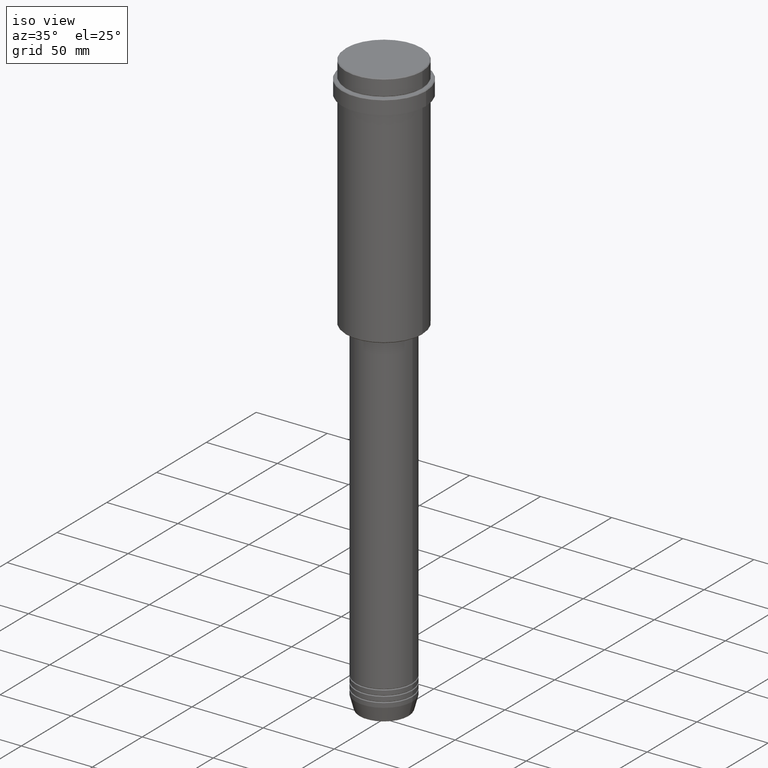
[diagram: clean part render]
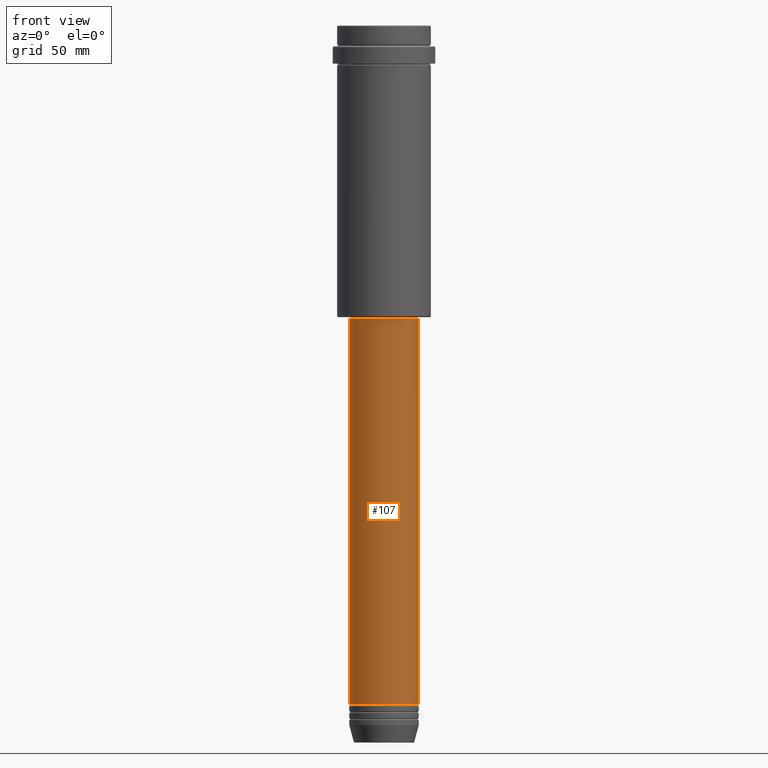
[diagram: tour spotlight — one face highlighted and labeled with its STEP entity id]
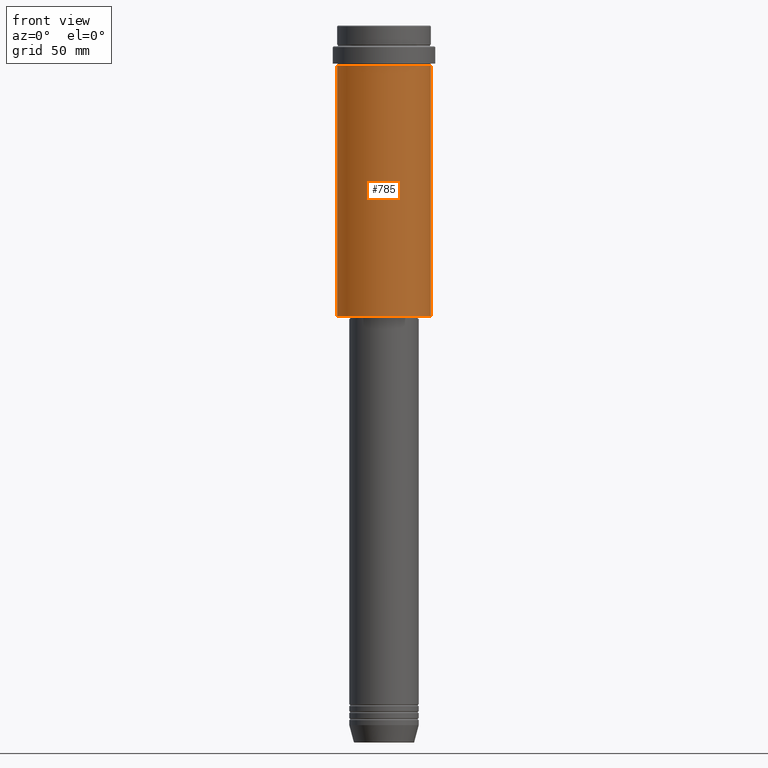
[diagram: tour spotlight — one face highlighted and labeled with its STEP entity id]
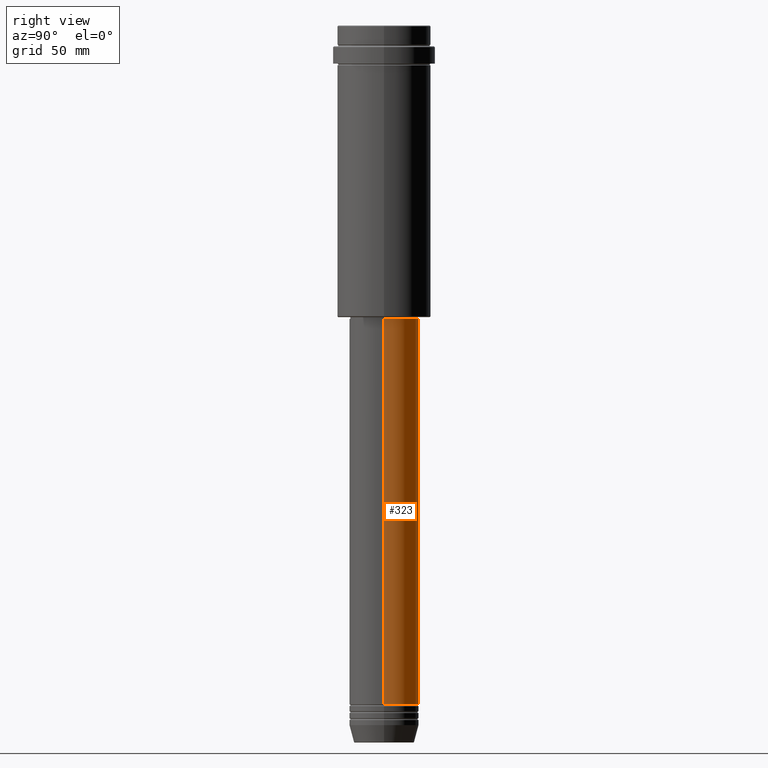
[diagram: tour spotlight — one face highlighted and labeled with its STEP entity id]
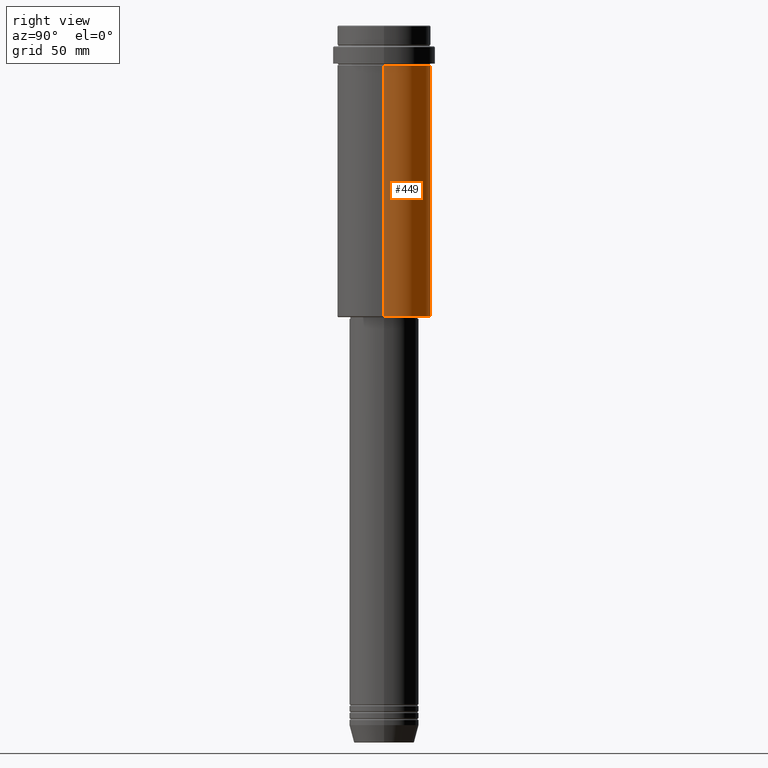
[diagram: tour spotlight — one face highlighted and labeled with its STEP entity id]
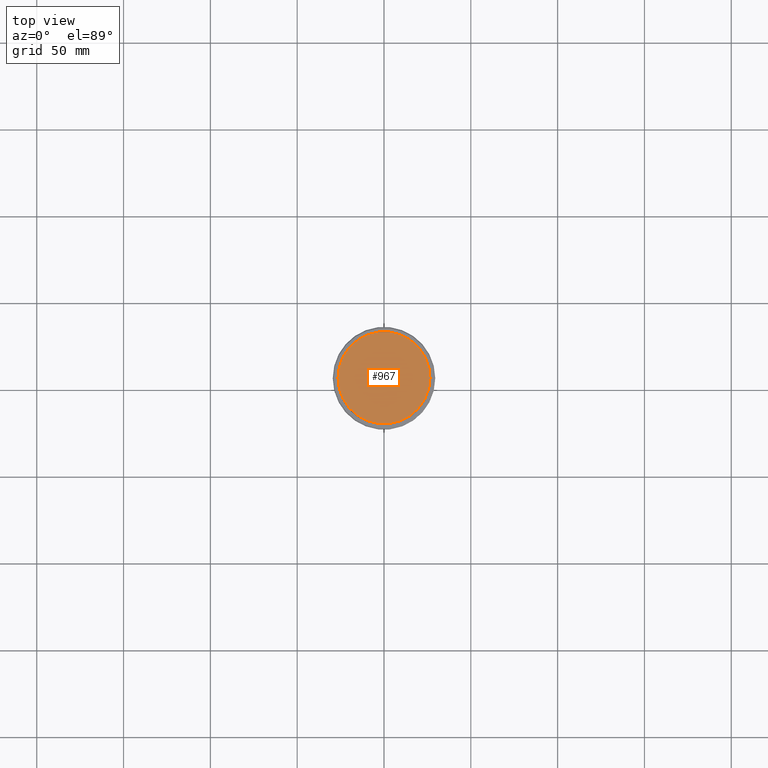
[diagram: tour spotlight — one face highlighted and labeled with its STEP entity id]
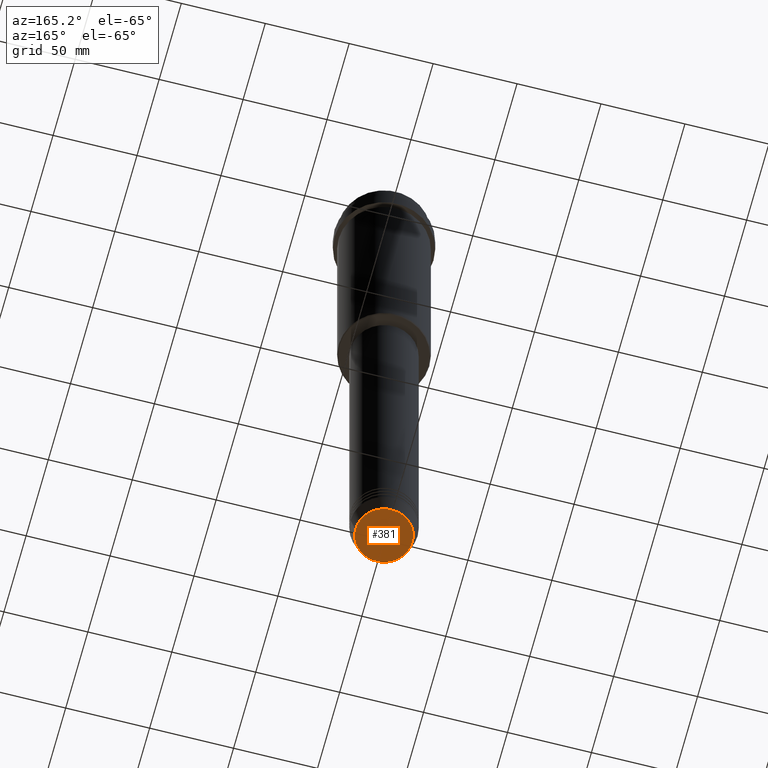
[diagram: tour spotlight — one face highlighted and labeled with its STEP entity id]
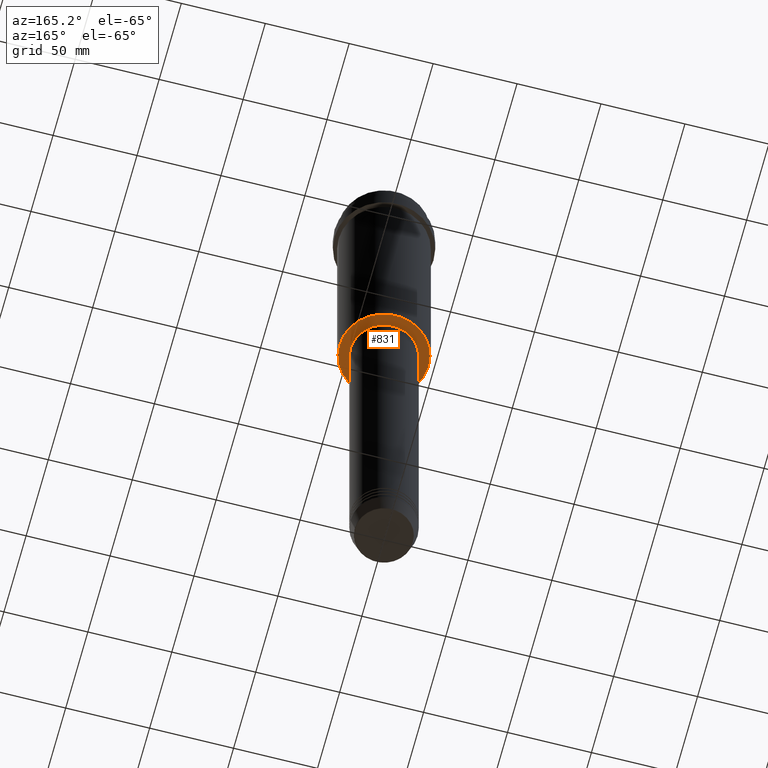
[diagram: tour spotlight — one face highlighted and labeled with its STEP entity id]
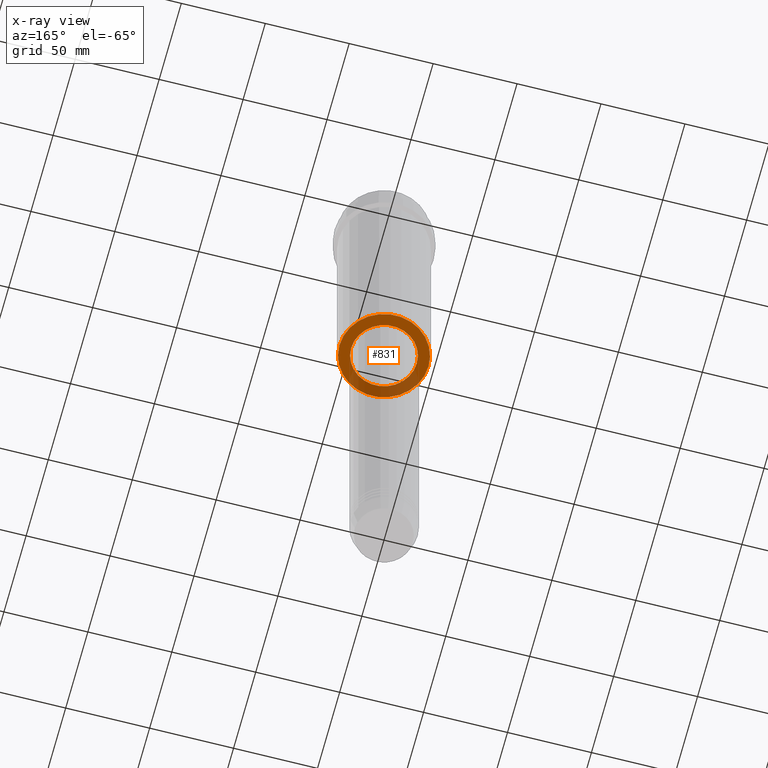
[diagram: x-ray of the same camera — body ghosted, this tour face saturated]
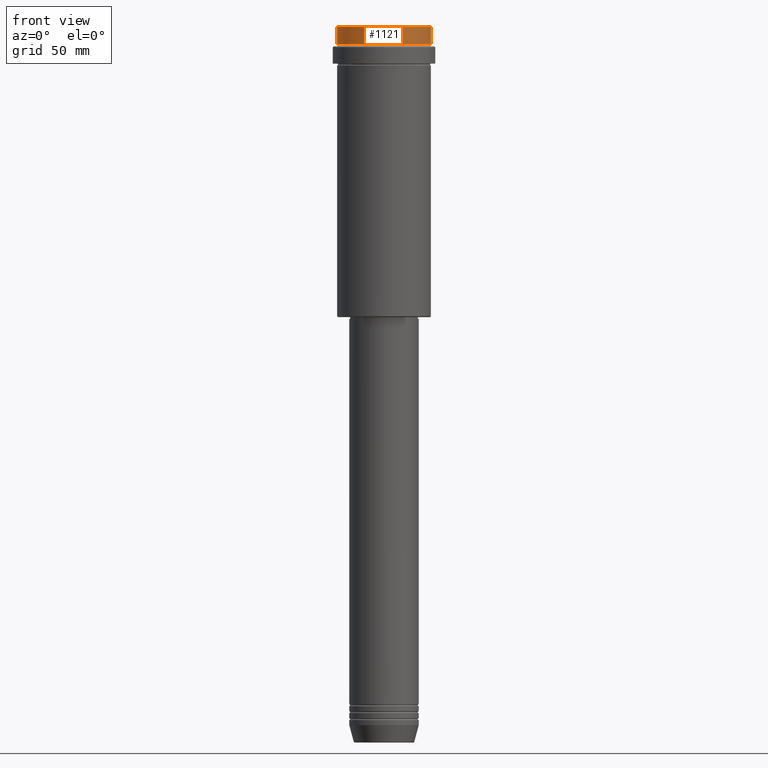
[diagram: tour spotlight — one face highlighted and labeled with its STEP entity id]
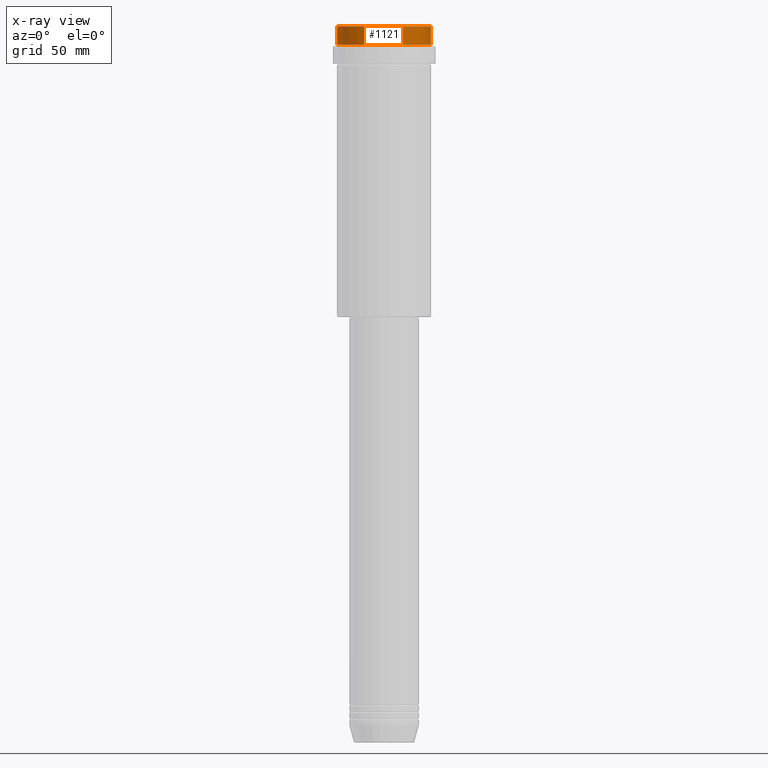
[diagram: x-ray of the same camera — body ghosted, this tour face saturated]
A machine part: a face-by-face anatomy tour. The part has 52 B-rep faces; the first image is the clean iso view, then the 8 largest visible faces are spotlighted one at a time (largest first), each with its STEP entity span.

Face 1 — front view, entity #107. In plain terms, the highlighted cylindrical surface (edge-blend (fillet) strip) has radius 20 mm, axis along (-0, -0, 1).
Definition (entity closure, byte-faithful):
#10 = ORIENTED_EDGE ( 'NONE', *, *, #793, .T. ) ;
#53 = CARTESIAN_POINT ( 'NONE',  ( 20.00000000000000000, 0.000000000000000000, -168.9999999999998863 ) ) ;
#79 = AXIS2_PLACEMENT_3D ( 'NONE', #427, #309, #654 ) ;
#107 = ADVANCED_FACE ( 'NONE', ( #378 ), #489, .T. ) ;
#110 = ORIENTED_EDGE ( 'NONE', *, *, #567, .F. ) ;
#129 = EDGE_CURVE ( 'NONE', #264, #205, #547, .T. ) ;
#140 = VECTOR ( 'NONE', #181, 1000.000000000000000 ) ;
#158 = DIRECTION ( 'NONE',  ( 1.000000000000000000, 0.000000000000000000, 0.000000000000000000 ) ) ;
#181 = DIRECTION ( 'NONE',  ( -0.000000000000000000, -0.000000000000000000, 1.000000000000000000 ) ) ;
#205 = VERTEX_POINT ( 'NONE', #679 ) ;
#213 = EDGE_CURVE ( 'NONE', #264, #268, #1210, .T. ) ;
#214 = AXIS2_PLACEMENT_3D ( 'NONE', #1243, #1140, #158 ) ;
#234 = DIRECTION ( 'NONE',  ( 1.000000000000000000, 0.000000000000000000, 0.000000000000000000 ) ) ;
#254 = CARTESIAN_POINT ( 'NONE',  ( 20.00000000000000000, 0.000000000000000000, 0.000000000000000000 ) ) ;
#264 = VERTEX_POINT ( 'NONE', #565 ) ;
#268 = VERTEX_POINT ( 'NONE', #446 ) ;
#309 = DIRECTION ( 'NONE',  ( -0.000000000000000000, -0.000000000000000000, 1.000000000000000000 ) ) ;
#378 = FACE_OUTER_BOUND ( 'NONE', #764, .T. ) ;
#403 = VECTOR ( 'NONE', #1364, 1000.000000000000000 ) ;
#427 = CARTESIAN_POINT ( 'NONE',  ( 0.000000000000000000, 0.000000000000000000, -168.9999999999998863 ) ) ;
#446 = CARTESIAN_POINT ( 'NONE',  ( 20.00000000000000000, 0.000000000000000000, -390.9999999999998295 ) ) ;
#482 = ORIENTED_EDGE ( 'NONE', *, *, #129, .F. ) ;
#489 = CYLINDRICAL_SURFACE ( 'NONE', #214, 20.00000000000000000 ) ;
#547 = LINE ( 'NONE', #842, #403 ) ;
#565 = CARTESIAN_POINT ( 'NONE',  ( -20.00000000000000000, 2.449293598294706513E-15, -390.9999999999998295 ) ) ;
#566 = ORIENTED_EDGE ( 'NONE', *, *, #213, .T. ) ;
#567 = EDGE_CURVE ( 'NONE', #205, #844, #1089, .T. ) ;
#654 = DIRECTION ( 'NONE',  ( 1.000000000000000000, 0.000000000000000000, 0.000000000000000000 ) ) ;
#679 = CARTESIAN_POINT ( 'NONE',  ( -20.00000000000000000, 2.449293598294706513E-15, -168.9999999999998863 ) ) ;
#692 = DIRECTION ( 'NONE',  ( -0.000000000000000000, -0.000000000000000000, 1.000000000000000000 ) ) ;
#764 = EDGE_LOOP ( 'NONE', ( #482, #566, #10, #110 ) ) ;
#791 = CARTESIAN_POINT ( 'NONE',  ( 0.000000000000000000, 0.000000000000000000, -390.9999999999998295 ) ) ;
#793 = EDGE_CURVE ( 'NONE', #268, #844, #1367, .T. ) ;
#842 = CARTESIAN_POINT ( 'NONE',  ( -20.00000000000000000, 2.449293598294706513E-15, 0.000000000000000000 ) ) ;
#844 = VERTEX_POINT ( 'NONE', #53 ) ;
#1089 = CIRCLE ( 'NONE', #79, 20.00000000000000000 ) ;
#1140 = DIRECTION ( 'NONE',  ( -0.000000000000000000, -0.000000000000000000, 1.000000000000000000 ) ) ;
#1150 = AXIS2_PLACEMENT_3D ( 'NONE', #791, #692, #234 ) ;
#1210 = CIRCLE ( 'NONE', #1150, 20.00000000000000000 ) ;
#1243 = CARTESIAN_POINT ( 'NONE',  ( 0.000000000000000000, 0.000000000000000000, 0.000000000000000000 ) ) ;
#1364 = DIRECTION ( 'NONE',  ( -0.000000000000000000, -0.000000000000000000, 1.000000000000000000 ) ) ;
#1367 = LINE ( 'NONE', #254, #140 ) ;

Face 2 — front view, entity #785. In plain terms, the highlighted cylindrical surface (partial cylindrical patch) has radius 27 mm, axis along (-0, -0, 1).
Definition (entity closure, byte-faithful):
#9 = DIRECTION ( 'NONE',  ( -0.000000000000000000, -0.000000000000000000, 1.000000000000000000 ) ) ;
#99 = AXIS2_PLACEMENT_3D ( 'NONE', #1142, #145, #483 ) ;
#104 = EDGE_CURVE ( 'NONE', #955, #1338, #593, .T. ) ;
#144 = ORIENTED_EDGE ( 'NONE', *, *, #1414, .T. ) ;
#145 = DIRECTION ( 'NONE',  ( -0.000000000000000000, -0.000000000000000000, 1.000000000000000000 ) ) ;
#164 = CARTESIAN_POINT ( 'NONE',  ( -27.00000000000000355, 3.306546357697854128E-15, -23.00000000000001421 ) ) ;
#212 = CARTESIAN_POINT ( 'NONE',  ( -27.00000000000000355, 3.306546357697854128E-15, -167.5000000000000568 ) ) ;
#229 = EDGE_CURVE ( 'NONE', #955, #788, #533, .T. ) ;
#252 = EDGE_LOOP ( 'NONE', ( #1241, #504, #144, #450 ) ) ;
#258 = VECTOR ( 'NONE', #1349, 1000.000000000000000 ) ;
#354 = AXIS2_PLACEMENT_3D ( 'NONE', #1149, #1228, #930 ) ;
#450 = ORIENTED_EDGE ( 'NONE', *, *, #887, .F. ) ;
#483 = DIRECTION ( 'NONE',  ( 1.000000000000000000, 0.000000000000000000, 0.000000000000000000 ) ) ;
#504 = ORIENTED_EDGE ( 'NONE', *, *, #229, .T. ) ;
#533 = CIRCLE ( 'NONE', #1147, 27.00000000000000355 ) ;
#593 = LINE ( 'NONE', #916, #258 ) ;
#623 = VERTEX_POINT ( 'NONE', #1104 ) ;
#745 = DIRECTION ( 'NONE',  ( -0.000000000000000000, -0.000000000000000000, 1.000000000000000000 ) ) ;
#785 = ADVANCED_FACE ( 'NONE', ( #1246 ), #1237, .T. ) ;
#788 = VERTEX_POINT ( 'NONE', #1041 ) ;
#839 = CARTESIAN_POINT ( 'NONE',  ( 27.00000000000000355, 0.000000000000000000, 0.000000000000000000 ) ) ;
#887 = EDGE_CURVE ( 'NONE', #1338, #623, #898, .T. ) ;
#890 = DIRECTION ( 'NONE',  ( -1.000000000000000000, 0.000000000000000000, 0.000000000000000000 ) ) ;
#895 = CARTESIAN_POINT ( 'NONE',  ( 0.000000000000000000, 0.000000000000000000, -167.5000000000000568 ) ) ;
#898 = CIRCLE ( 'NONE', #99, 27.00000000000000355 ) ;
#916 = CARTESIAN_POINT ( 'NONE',  ( -27.00000000000000355, 3.306546357697854128E-15, 0.000000000000000000 ) ) ;
#930 = DIRECTION ( 'NONE',  ( 1.000000000000000000, 0.000000000000000000, 0.000000000000000000 ) ) ;
#955 = VERTEX_POINT ( 'NONE', #212 ) ;
#1041 = CARTESIAN_POINT ( 'NONE',  ( 27.00000000000000355, 0.000000000000000000, -167.5000000000000568 ) ) ;
#1104 = CARTESIAN_POINT ( 'NONE',  ( 27.00000000000000355, 0.000000000000000000, -23.00000000000001421 ) ) ;
#1142 = CARTESIAN_POINT ( 'NONE',  ( 0.000000000000000000, 0.000000000000000000, -23.00000000000001421 ) ) ;
#1147 = AXIS2_PLACEMENT_3D ( 'NONE', #895, #9, #890 ) ;
#1149 = CARTESIAN_POINT ( 'NONE',  ( 0.000000000000000000, 0.000000000000000000, 0.000000000000000000 ) ) ;
#1176 = VECTOR ( 'NONE', #745, 1000.000000000000000 ) ;
#1228 = DIRECTION ( 'NONE',  ( -0.000000000000000000, -0.000000000000000000, 1.000000000000000000 ) ) ;
#1237 = CYLINDRICAL_SURFACE ( 'NONE', #354, 27.00000000000000355 ) ;
#1241 = ORIENTED_EDGE ( 'NONE', *, *, #104, .F. ) ;
#1246 = FACE_OUTER_BOUND ( 'NONE', #252, .T. ) ;
#1338 = VERTEX_POINT ( 'NONE', #164 ) ;
#1349 = DIRECTION ( 'NONE',  ( -0.000000000000000000, -0.000000000000000000, 1.000000000000000000 ) ) ;
#1397 = LINE ( 'NONE', #839, #1176 ) ;
#1414 = EDGE_CURVE ( 'NONE', #788, #623, #1397, .T. ) ;

Face 3 — right view, entity #323. In plain terms, the highlighted cylindrical surface (edge-blend (fillet) strip) has radius 20 mm, axis along (-0, -0, 1).
Definition (entity closure, byte-faithful):
#21 = FACE_OUTER_BOUND ( 'NONE', #469, .T. ) ;
#53 = CARTESIAN_POINT ( 'NONE',  ( 20.00000000000000000, 0.000000000000000000, -168.9999999999998863 ) ) ;
#129 = EDGE_CURVE ( 'NONE', #264, #205, #547, .T. ) ;
#137 = DIRECTION ( 'NONE',  ( -0.000000000000000000, -0.000000000000000000, 1.000000000000000000 ) ) ;
#140 = VECTOR ( 'NONE', #181, 1000.000000000000000 ) ;
#167 = DIRECTION ( 'NONE',  ( -0.000000000000000000, -0.000000000000000000, 1.000000000000000000 ) ) ;
#179 = ORIENTED_EDGE ( 'NONE', *, *, #129, .T. ) ;
#181 = DIRECTION ( 'NONE',  ( -0.000000000000000000, -0.000000000000000000, 1.000000000000000000 ) ) ;
#205 = VERTEX_POINT ( 'NONE', #679 ) ;
#254 = CARTESIAN_POINT ( 'NONE',  ( 20.00000000000000000, 0.000000000000000000, 0.000000000000000000 ) ) ;
#264 = VERTEX_POINT ( 'NONE', #565 ) ;
#268 = VERTEX_POINT ( 'NONE', #446 ) ;
#278 = EDGE_CURVE ( 'NONE', #844, #205, #333, .T. ) ;
#323 = ADVANCED_FACE ( 'NONE', ( #21 ), #460, .T. ) ;
#333 = CIRCLE ( 'NONE', #747, 20.00000000000000000 ) ;
#353 = AXIS2_PLACEMENT_3D ( 'NONE', #357, #137, #579 ) ;
#357 = CARTESIAN_POINT ( 'NONE',  ( 0.000000000000000000, 0.000000000000000000, 0.000000000000000000 ) ) ;
#395 = DIRECTION ( 'NONE',  ( 1.000000000000000000, 0.000000000000000000, 0.000000000000000000 ) ) ;
#403 = VECTOR ( 'NONE', #1364, 1000.000000000000000 ) ;
#407 = AXIS2_PLACEMENT_3D ( 'NONE', #819, #167, #395 ) ;
#446 = CARTESIAN_POINT ( 'NONE',  ( 20.00000000000000000, 0.000000000000000000, -390.9999999999998295 ) ) ;
#455 = CARTESIAN_POINT ( 'NONE',  ( 0.000000000000000000, 0.000000000000000000, -168.9999999999998863 ) ) ;
#460 = CYLINDRICAL_SURFACE ( 'NONE', #353, 20.00000000000000000 ) ;
#469 = EDGE_LOOP ( 'NONE', ( #1313, #179, #1188, #1227 ) ) ;
#547 = LINE ( 'NONE', #842, #403 ) ;
#565 = CARTESIAN_POINT ( 'NONE',  ( -20.00000000000000000, 2.449293598294706513E-15, -390.9999999999998295 ) ) ;
#579 = DIRECTION ( 'NONE',  ( 1.000000000000000000, 0.000000000000000000, 0.000000000000000000 ) ) ;
#679 = CARTESIAN_POINT ( 'NONE',  ( -20.00000000000000000, 2.449293598294706513E-15, -168.9999999999998863 ) ) ;
#747 = AXIS2_PLACEMENT_3D ( 'NONE', #455, #1320, #1231 ) ;
#793 = EDGE_CURVE ( 'NONE', #268, #844, #1367, .T. ) ;
#819 = CARTESIAN_POINT ( 'NONE',  ( 0.000000000000000000, 0.000000000000000000, -390.9999999999998295 ) ) ;
#841 = CIRCLE ( 'NONE', #407, 20.00000000000000000 ) ;
#842 = CARTESIAN_POINT ( 'NONE',  ( -20.00000000000000000, 2.449293598294706513E-15, 0.000000000000000000 ) ) ;
#844 = VERTEX_POINT ( 'NONE', #53 ) ;
#1082 = EDGE_CURVE ( 'NONE', #268, #264, #841, .T. ) ;
#1188 = ORIENTED_EDGE ( 'NONE', *, *, #278, .F. ) ;
#1227 = ORIENTED_EDGE ( 'NONE', *, *, #793, .F. ) ;
#1231 = DIRECTION ( 'NONE',  ( 1.000000000000000000, 0.000000000000000000, 0.000000000000000000 ) ) ;
#1313 = ORIENTED_EDGE ( 'NONE', *, *, #1082, .T. ) ;
#1320 = DIRECTION ( 'NONE',  ( -0.000000000000000000, -0.000000000000000000, 1.000000000000000000 ) ) ;
#1364 = DIRECTION ( 'NONE',  ( -0.000000000000000000, -0.000000000000000000, 1.000000000000000000 ) ) ;
#1367 = LINE ( 'NONE', #254, #140 ) ;

Face 4 — right view, entity #449. In plain terms, the highlighted cylindrical surface (partial cylindrical patch) has radius 27 mm, axis along (-0, -0, 1).
Definition (entity closure, byte-faithful):
#71 = CARTESIAN_POINT ( 'NONE',  ( 0.000000000000000000, 0.000000000000000000, -167.5000000000000568 ) ) ;
#104 = EDGE_CURVE ( 'NONE', #955, #1338, #593, .T. ) ;
#138 = CARTESIAN_POINT ( 'NONE',  ( 0.000000000000000000, 0.000000000000000000, -23.00000000000001421 ) ) ;
#154 = DIRECTION ( 'NONE',  ( -1.000000000000000000, 0.000000000000000000, 0.000000000000000000 ) ) ;
#164 = CARTESIAN_POINT ( 'NONE',  ( -27.00000000000000355, 3.306546357697854128E-15, -23.00000000000001421 ) ) ;
#174 = CYLINDRICAL_SURFACE ( 'NONE', #649, 27.00000000000000355 ) ;
#212 = CARTESIAN_POINT ( 'NONE',  ( -27.00000000000000355, 3.306546357697854128E-15, -167.5000000000000568 ) ) ;
#250 = DIRECTION ( 'NONE',  ( -0.000000000000000000, -0.000000000000000000, 1.000000000000000000 ) ) ;
#258 = VECTOR ( 'NONE', #1349, 1000.000000000000000 ) ;
#297 = ORIENTED_EDGE ( 'NONE', *, *, #848, .T. ) ;
#438 = DIRECTION ( 'NONE',  ( -0.000000000000000000, -0.000000000000000000, 1.000000000000000000 ) ) ;
#449 = ADVANCED_FACE ( 'NONE', ( #933 ), #174, .T. ) ;
#516 = CIRCLE ( 'NONE', #1302, 27.00000000000000355 ) ;
#582 = DIRECTION ( 'NONE',  ( 1.000000000000000000, 0.000000000000000000, 0.000000000000000000 ) ) ;
#593 = LINE ( 'NONE', #916, #258 ) ;
#602 = ORIENTED_EDGE ( 'NONE', *, *, #1332, .F. ) ;
#614 = CARTESIAN_POINT ( 'NONE',  ( 0.000000000000000000, 0.000000000000000000, 0.000000000000000000 ) ) ;
#623 = VERTEX_POINT ( 'NONE', #1104 ) ;
#649 = AXIS2_PLACEMENT_3D ( 'NONE', #614, #438, #1288 ) ;
#706 = ORIENTED_EDGE ( 'NONE', *, *, #104, .T. ) ;
#745 = DIRECTION ( 'NONE',  ( -0.000000000000000000, -0.000000000000000000, 1.000000000000000000 ) ) ;
#788 = VERTEX_POINT ( 'NONE', #1041 ) ;
#794 = CIRCLE ( 'NONE', #1306, 27.00000000000000355 ) ;
#839 = CARTESIAN_POINT ( 'NONE',  ( 27.00000000000000355, 0.000000000000000000, 0.000000000000000000 ) ) ;
#848 = EDGE_CURVE ( 'NONE', #788, #955, #516, .T. ) ;
#849 = EDGE_LOOP ( 'NONE', ( #297, #706, #602, #1178 ) ) ;
#916 = CARTESIAN_POINT ( 'NONE',  ( -27.00000000000000355, 3.306546357697854128E-15, 0.000000000000000000 ) ) ;
#933 = FACE_OUTER_BOUND ( 'NONE', #849, .T. ) ;
#936 = DIRECTION ( 'NONE',  ( -0.000000000000000000, -0.000000000000000000, 1.000000000000000000 ) ) ;
#955 = VERTEX_POINT ( 'NONE', #212 ) ;
#1041 = CARTESIAN_POINT ( 'NONE',  ( 27.00000000000000355, 0.000000000000000000, -167.5000000000000568 ) ) ;
#1104 = CARTESIAN_POINT ( 'NONE',  ( 27.00000000000000355, 0.000000000000000000, -23.00000000000001421 ) ) ;
#1176 = VECTOR ( 'NONE', #745, 1000.000000000000000 ) ;
#1178 = ORIENTED_EDGE ( 'NONE', *, *, #1414, .F. ) ;
#1288 = DIRECTION ( 'NONE',  ( 1.000000000000000000, 0.000000000000000000, 0.000000000000000000 ) ) ;
#1302 = AXIS2_PLACEMENT_3D ( 'NONE', #71, #936, #154 ) ;
#1306 = AXIS2_PLACEMENT_3D ( 'NONE', #138, #250, #582 ) ;
#1332 = EDGE_CURVE ( 'NONE', #623, #1338, #794, .T. ) ;
#1338 = VERTEX_POINT ( 'NONE', #164 ) ;
#1349 = DIRECTION ( 'NONE',  ( -0.000000000000000000, -0.000000000000000000, 1.000000000000000000 ) ) ;
#1397 = LINE ( 'NONE', #839, #1176 ) ;
#1414 = EDGE_CURVE ( 'NONE', #788, #623, #1397, .T. ) ;

Face 5 — top view, entity #967. In plain terms, the highlighted planar face has unit normal (0, -0, 1).
Definition (entity closure, byte-faithful):
#67 = CARTESIAN_POINT ( 'NONE',  ( -26.50000000000007816, 0.000000000000000000, 0.000000000000000000 ) ) ;
#270 = DIRECTION ( 'NONE',  ( -0.000000000000000000, -0.000000000000000000, 1.000000000000000000 ) ) ;
#416 = ORIENTED_EDGE ( 'NONE', *, *, #1372, .T. ) ;
#442 = VERTEX_POINT ( 'NONE', #67 ) ;
#447 = AXIS2_PLACEMENT_3D ( 'NONE', #534, #1169, #1386 ) ;
#448 = CIRCLE ( 'NONE', #979, 26.50000000000007816 ) ;
#472 = DIRECTION ( 'NONE',  ( -0.000000000000000000, -0.000000000000000000, 1.000000000000000000 ) ) ;
#532 = CARTESIAN_POINT ( 'NONE',  ( 26.50000000000007816, 3.275930187719175074E-15, 0.000000000000000000 ) ) ;
#534 = CARTESIAN_POINT ( 'NONE',  ( 0.000000000000000000, 0.000000000000000000, 0.000000000000000000 ) ) ;
#554 = ORIENTED_EDGE ( 'NONE', *, *, #1353, .T. ) ;
#599 = DIRECTION ( 'NONE',  ( 1.000000000000000000, 0.000000000000000000, 0.000000000000000000 ) ) ;
#638 = FACE_OUTER_BOUND ( 'NONE', #937, .T. ) ;
#694 = CARTESIAN_POINT ( 'NONE',  ( 0.000000000000000000, 0.000000000000000000, 0.000000000000000000 ) ) ;
#908 = DIRECTION ( 'NONE',  ( 1.000000000000000000, 0.000000000000000000, 0.000000000000000000 ) ) ;
#937 = EDGE_LOOP ( 'NONE', ( #554, #416 ) ) ;
#967 = ADVANCED_FACE ( 'NONE', ( #638 ), #1092, .T. ) ;
#979 = AXIS2_PLACEMENT_3D ( 'NONE', #694, #270, #599 ) ;
#1024 = CARTESIAN_POINT ( 'NONE',  ( 0.000000000000000000, 0.000000000000000000, 0.000000000000000000 ) ) ;
#1049 = CIRCLE ( 'NONE', #1266, 26.50000000000007816 ) ;
#1092 = PLANE ( 'NONE',  #447 ) ;
#1169 = DIRECTION ( 'NONE',  ( 0.000000000000000000, -0.000000000000000000, 1.000000000000000000 ) ) ;
#1184 = VERTEX_POINT ( 'NONE', #532 ) ;
#1266 = AXIS2_PLACEMENT_3D ( 'NONE', #1024, #472, #908 ) ;
#1353 = EDGE_CURVE ( 'NONE', #442, #1184, #1049, .T. ) ;
#1372 = EDGE_CURVE ( 'NONE', #1184, #442, #448, .T. ) ;
#1386 = DIRECTION ( 'NONE',  ( 1.000000000000000000, 0.000000000000000000, 0.000000000000000000 ) ) ;

Face 6 — auxiliary view, entity #381. In plain terms, the highlighted planar face has unit normal (0, -0, 1).
Definition (entity closure, byte-faithful):
#197 = AXIS2_PLACEMENT_3D ( 'NONE', #1373, #1381, #637 ) ;
#273 = DIRECTION ( 'NONE',  ( 0.000000000000000000, 0.000000000000000000, -1.000000000000000000 ) ) ;
#348 = CARTESIAN_POINT ( 'NONE',  ( 16.93684458169928675, 0.000000000000000000, -413.0000000000000000 ) ) ;
#374 = DIRECTION ( 'NONE',  ( 0.000000000000000000, -0.000000000000000000, 1.000000000000000000 ) ) ;
#381 = ADVANCED_FACE ( 'NONE', ( #938 ), #620, .F. ) ;
#539 = CIRCLE ( 'NONE', #721, 16.93684458169928675 ) ;
#588 = CARTESIAN_POINT ( 'NONE',  ( -16.93684458169928675, 2.103738199747889592E-15, -413.0000000000000000 ) ) ;
#620 = PLANE ( 'NONE',  #921 ) ;
#637 = DIRECTION ( 'NONE',  ( 1.000000000000000000, 0.000000000000000000, 0.000000000000000000 ) ) ;
#653 = ORIENTED_EDGE ( 'NONE', *, *, #1400, .T. ) ;
#707 = CARTESIAN_POINT ( 'NONE',  ( 0.000000000000000000, 0.000000000000000000, -413.0000000000000000 ) ) ;
#721 = AXIS2_PLACEMENT_3D ( 'NONE', #707, #273, #812 ) ;
#812 = DIRECTION ( 'NONE',  ( 1.000000000000000000, 0.000000000000000000, 0.000000000000000000 ) ) ;
#843 = CIRCLE ( 'NONE', #197, 16.93684458169928675 ) ;
#874 = EDGE_CURVE ( 'NONE', #904, #994, #539, .T. ) ;
#875 = ORIENTED_EDGE ( 'NONE', *, *, #874, .T. ) ;
#904 = VERTEX_POINT ( 'NONE', #588 ) ;
#921 = AXIS2_PLACEMENT_3D ( 'NONE', #1370, #374, #1137 ) ;
#932 = EDGE_LOOP ( 'NONE', ( #653, #875 ) ) ;
#938 = FACE_OUTER_BOUND ( 'NONE', #932, .T. ) ;
#994 = VERTEX_POINT ( 'NONE', #348 ) ;
#1137 = DIRECTION ( 'NONE',  ( 1.000000000000000000, 0.000000000000000000, 0.000000000000000000 ) ) ;
#1370 = CARTESIAN_POINT ( 'NONE',  ( 0.000000000000000000, 0.000000000000000000, -413.0000000000000000 ) ) ;
#1373 = CARTESIAN_POINT ( 'NONE',  ( 0.000000000000000000, 0.000000000000000000, -413.0000000000000000 ) ) ;
#1381 = DIRECTION ( 'NONE',  ( 0.000000000000000000, 0.000000000000000000, -1.000000000000000000 ) ) ;
#1400 = EDGE_CURVE ( 'NONE', #994, #904, #843, .T. ) ;

Face 7 — auxiliary view, entity #831. An x-ray twin of the same camera follows (body ghosted, this face saturated) — the face is partly hidden behind the body. In plain terms, the highlighted planar face has unit normal (0, 0, -1).
Definition (entity closure, byte-faithful):
#52 = VERTEX_POINT ( 'NONE', #261 ) ;
#55 = AXIS2_PLACEMENT_3D ( 'NONE', #1028, #325, #845 ) ;
#120 = AXIS2_PLACEMENT_3D ( 'NONE', #1258, #603, #293 ) ;
#261 = CARTESIAN_POINT ( 'NONE',  ( -19.49999999999999289, 2.388061258337338150E-15, -167.9999999999999432 ) ) ;
#293 = DIRECTION ( 'NONE',  ( -1.000000000000000000, 0.000000000000000000, -0.000000000000000000 ) ) ;
#325 = DIRECTION ( 'NONE',  ( -0.000000000000000000, -0.000000000000000000, 1.000000000000000000 ) ) ;
#363 = FACE_BOUND ( 'NONE', #658, .T. ) ;
#372 = PLANE ( 'NONE',  #120 ) ;
#379 = DIRECTION ( 'NONE',  ( 0.000000000000000000, 0.000000000000000000, -1.000000000000000000 ) ) ;
#399 = ORIENTED_EDGE ( 'NONE', *, *, #928, .T. ) ;
#411 = CARTESIAN_POINT ( 'NONE',  ( -26.50000000000002487, 3.275930187719171524E-15, -167.9999999999999716 ) ) ;
#437 = ORIENTED_EDGE ( 'NONE', *, *, #536, .T. ) ;
#536 = EDGE_CURVE ( 'NONE', #1416, #740, #1351, .T. ) ;
#576 = CARTESIAN_POINT ( 'NONE',  ( 26.50000000000002487, 0.000000000000000000, -167.9999999999999716 ) ) ;
#603 = DIRECTION ( 'NONE',  ( 0.000000000000000000, 0.000000000000000000, -1.000000000000000000 ) ) ;
#611 = DIRECTION ( 'NONE',  ( -0.000000000000000000, -0.000000000000000000, 1.000000000000000000 ) ) ;
#629 = AXIS2_PLACEMENT_3D ( 'NONE', #1345, #611, #1361 ) ;
#658 = EDGE_LOOP ( 'NONE', ( #1254, #399 ) ) ;
#740 = VERTEX_POINT ( 'NONE', #576 ) ;
#792 = AXIS2_PLACEMENT_3D ( 'NONE', #1350, #379, #1244 ) ;
#811 = EDGE_CURVE ( 'NONE', #1073, #52, #840, .T. ) ;
#831 = ADVANCED_FACE ( 'NONE', ( #1354, #363 ), #372, .T. ) ;
#840 = CIRCLE ( 'NONE', #629, 19.49999999999999289 ) ;
#845 = DIRECTION ( 'NONE',  ( 1.000000000000000000, 0.000000000000000000, 0.000000000000000000 ) ) ;
#862 = AXIS2_PLACEMENT_3D ( 'NONE', #1402, #965, #958 ) ;
#917 = ORIENTED_EDGE ( 'NONE', *, *, #1164, .T. ) ;
#928 = EDGE_CURVE ( 'NONE', #52, #1073, #1131, .T. ) ;
#958 = DIRECTION ( 'NONE',  ( -1.000000000000000000, 0.000000000000000000, 0.000000000000000000 ) ) ;
#965 = DIRECTION ( 'NONE',  ( 0.000000000000000000, 0.000000000000000000, -1.000000000000000000 ) ) ;
#1028 = CARTESIAN_POINT ( 'NONE',  ( 0.000000000000000000, 0.000000000000000000, -167.9999999999999432 ) ) ;
#1073 = VERTEX_POINT ( 'NONE', #1365 ) ;
#1131 = CIRCLE ( 'NONE', #55, 19.49999999999999289 ) ;
#1164 = EDGE_CURVE ( 'NONE', #740, #1416, #1217, .T. ) ;
#1217 = CIRCLE ( 'NONE', #792, 26.50000000000002487 ) ;
#1244 = DIRECTION ( 'NONE',  ( -1.000000000000000000, 0.000000000000000000, 0.000000000000000000 ) ) ;
#1254 = ORIENTED_EDGE ( 'NONE', *, *, #811, .T. ) ;
#1258 = CARTESIAN_POINT ( 'NONE',  ( 0.000000000000000000, 27.00000000000000355, -167.9999999999999716 ) ) ;
#1345 = CARTESIAN_POINT ( 'NONE',  ( 0.000000000000000000, 0.000000000000000000, -167.9999999999999432 ) ) ;
#1350 = CARTESIAN_POINT ( 'NONE',  ( 0.000000000000000000, 0.000000000000000000, -167.9999999999999716 ) ) ;
#1351 = CIRCLE ( 'NONE', #862, 26.50000000000002487 ) ;
#1354 = FACE_OUTER_BOUND ( 'NONE', #1362, .T. ) ;
#1361 = DIRECTION ( 'NONE',  ( 1.000000000000000000, 0.000000000000000000, 0.000000000000000000 ) ) ;
#1362 = EDGE_LOOP ( 'NONE', ( #917, #437 ) ) ;
#1365 = CARTESIAN_POINT ( 'NONE',  ( 19.49999999999999289, 0.000000000000000000, -167.9999999999999432 ) ) ;
#1402 = CARTESIAN_POINT ( 'NONE',  ( 0.000000000000000000, 0.000000000000000000, -167.9999999999999716 ) ) ;
#1416 = VERTEX_POINT ( 'NONE', #411 ) ;

Face 8 — front view, entity #1121. An x-ray twin of the same camera follows (body ghosted, this face saturated) — the face is partly hidden behind the body. In plain terms, the highlighted cylindrical surface (partial cylindrical patch) has radius 27 mm, axis along (-0, -0, 1).
Definition (entity closure, byte-faithful):
#16 = VERTEX_POINT ( 'NONE', #818 ) ;
#27 = DIRECTION ( 'NONE',  ( 1.000000000000000000, 0.000000000000000000, 0.000000000000000000 ) ) ;
#41 = EDGE_CURVE ( 'NONE', #16, #662, #991, .T. ) ;
#42 = DIRECTION ( 'NONE',  ( 1.000000000000000000, 0.000000000000000000, 0.000000000000000000 ) ) ;
#56 = ORIENTED_EDGE ( 'NONE', *, *, #1279, .T. ) ;
#93 = CARTESIAN_POINT ( 'NONE',  ( 27.00000000000000355, 0.000000000000000000, -0.4999999999999241163 ) ) ;
#100 = AXIS2_PLACEMENT_3D ( 'NONE', #1026, #574, #27 ) ;
#119 = EDGE_CURVE ( 'NONE', #662, #1215, #732, .T. ) ;
#125 = VERTEX_POINT ( 'NONE', #877 ) ;
#206 = CARTESIAN_POINT ( 'NONE',  ( -27.00000000000000355, 3.306546357697854128E-15, 0.000000000000000000 ) ) ;
#246 = CARTESIAN_POINT ( 'NONE',  ( 0.000000000000000000, 0.000000000000000000, -11.00000000000000178 ) ) ;
#396 = ORIENTED_EDGE ( 'NONE', *, *, #119, .T. ) ;
#507 = ORIENTED_EDGE ( 'NONE', *, *, #591, .F. ) ;
#574 = DIRECTION ( 'NONE',  ( -0.000000000000000000, -0.000000000000000000, 1.000000000000000000 ) ) ;
#581 = VECTOR ( 'NONE', #648, 1000.000000000000000 ) ;
#591 = EDGE_CURVE ( 'NONE', #16, #125, #1185, .T. ) ;
#642 = CARTESIAN_POINT ( 'NONE',  ( 0.000000000000000000, 0.000000000000000000, -0.4999999999999241163 ) ) ;
#647 = ORIENTED_EDGE ( 'NONE', *, *, #41, .T. ) ;
#648 = DIRECTION ( 'NONE',  ( -0.000000000000000000, -0.000000000000000000, 1.000000000000000000 ) ) ;
#657 = CARTESIAN_POINT ( 'NONE',  ( 27.00000000000000355, 0.000000000000000000, 0.000000000000000000 ) ) ;
#662 = VERTEX_POINT ( 'NONE', #1318 ) ;
#732 = LINE ( 'NONE', #657, #1012 ) ;
#737 = EDGE_LOOP ( 'NONE', ( #507, #647, #396, #56 ) ) ;
#818 = CARTESIAN_POINT ( 'NONE',  ( -27.00000000000000355, 3.306546357697854128E-15, -11.00000000000000178 ) ) ;
#877 = CARTESIAN_POINT ( 'NONE',  ( -27.00000000000000355, 3.306546357697854128E-15, -0.4999999999999241163 ) ) ;
#942 = DIRECTION ( 'NONE',  ( 0.000000000000000000, 0.000000000000000000, -1.000000000000000000 ) ) ;
#991 = CIRCLE ( 'NONE', #1322, 27.00000000000000355 ) ;
#1011 = CYLINDRICAL_SURFACE ( 'NONE', #100, 27.00000000000000355 ) ;
#1012 = VECTOR ( 'NONE', #1181, 1000.000000000000000 ) ;
#1026 = CARTESIAN_POINT ( 'NONE',  ( 0.000000000000000000, 0.000000000000000000, 0.000000000000000000 ) ) ;
#1033 = FACE_OUTER_BOUND ( 'NONE', #737, .T. ) ;
#1095 = CIRCLE ( 'NONE', #1242, 27.00000000000000355 ) ;
#1121 = ADVANCED_FACE ( 'NONE', ( #1033 ), #1011, .T. ) ;
#1181 = DIRECTION ( 'NONE',  ( -0.000000000000000000, -0.000000000000000000, 1.000000000000000000 ) ) ;
#1185 = LINE ( 'NONE', #206, #581 ) ;
#1215 = VERTEX_POINT ( 'NONE', #93 ) ;
#1242 = AXIS2_PLACEMENT_3D ( 'NONE', #642, #942, #1415 ) ;
#1279 = EDGE_CURVE ( 'NONE', #1215, #125, #1095, .T. ) ;
#1318 = CARTESIAN_POINT ( 'NONE',  ( 27.00000000000000355, 0.000000000000000000, -11.00000000000000178 ) ) ;
#1322 = AXIS2_PLACEMENT_3D ( 'NONE', #246, #1358, #42 ) ;
#1358 = DIRECTION ( 'NONE',  ( -0.000000000000000000, -0.000000000000000000, 1.000000000000000000 ) ) ;
#1415 = DIRECTION ( 'NONE',  ( 1.000000000000000000, 0.000000000000000000, 0.000000000000000000 ) ) ;